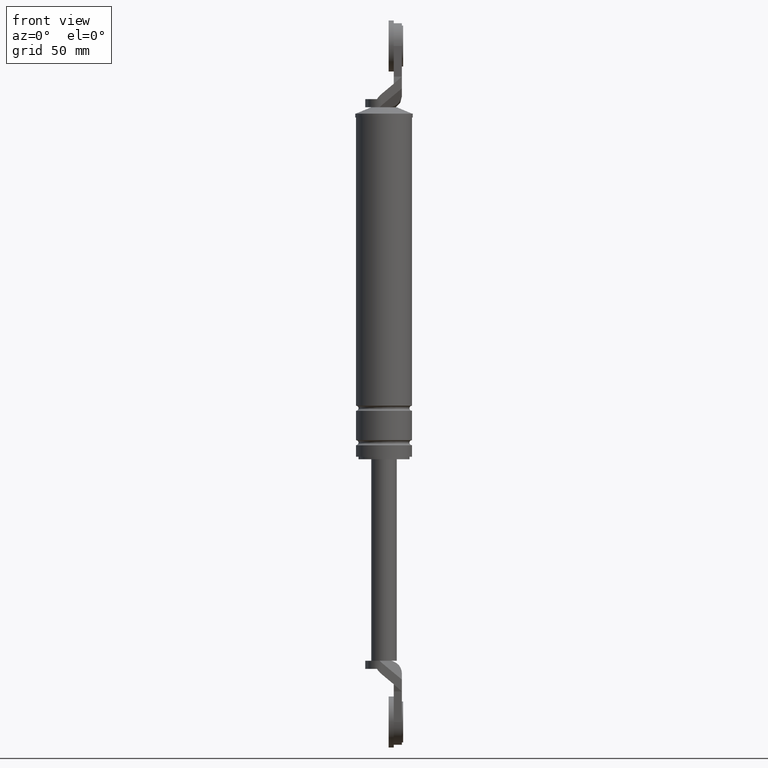
[diagram: clean part render]
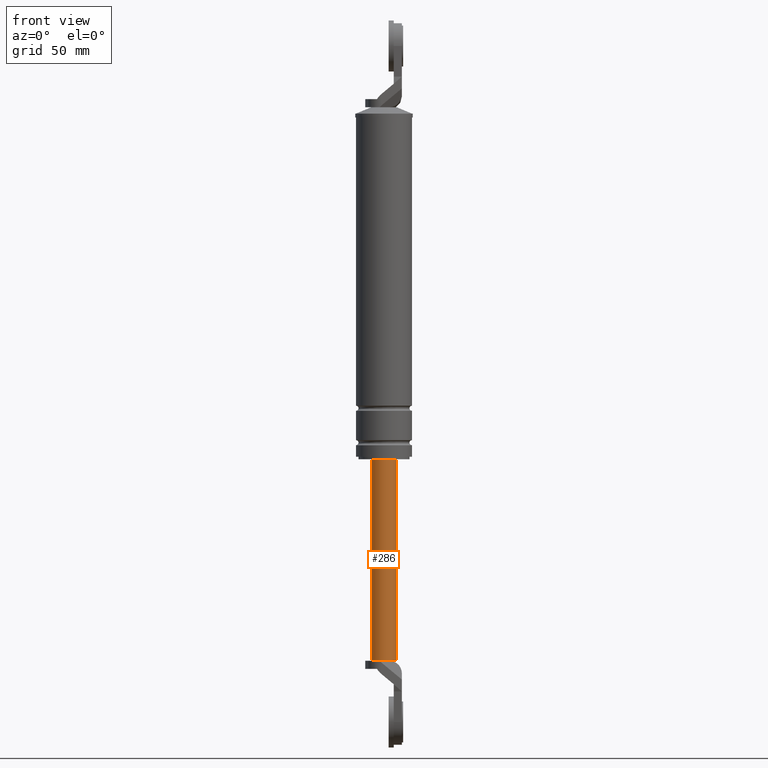
[diagram: same view with one face highlighted and labeled with its STEP entity id]
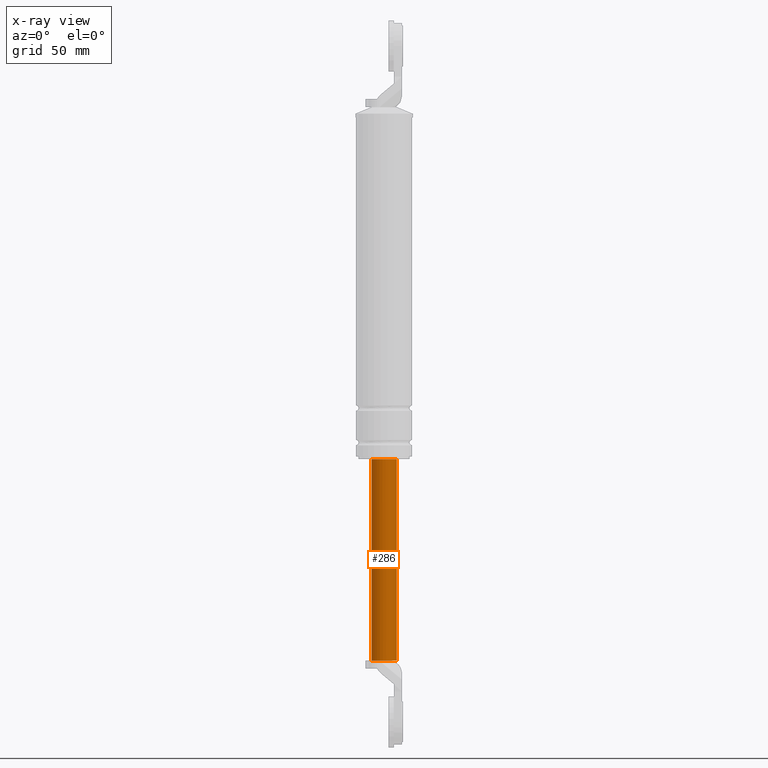
[diagram: x-ray of the same camera — body ghosted, the highlighted face saturated]
A machine part, front view. The second image highlights one B-rep face of the part: STEP entity #286.
The next image is the same camera in x-ray: the body ghosted, the highlighted face saturated — about 0% of this face is hidden behind the body in this view.
In plain terms, the highlighted cylindrical surface (edge-blend (fillet) strip) has radius 5 mm, axis along (0, 0, 1).
Its self-contained STEP definition (entity closure, byte-faithful):
#286=ADVANCED_FACE('',(#1119),#1118,.T.);
#1118=CYLINDRICAL_SURFACE('',#1778,5.00000000000E+000);
#1119=FACE_OUTER_BOUND('',#1779,.T.);
#1775=CARTESIAN_POINT('',(0.00000000000E+000,3.58204186421E-014,0.00000000000E+000));
#1776=DIRECTION('',(-0.00000000000E+000,-0.00000000000E+000,1.00000000000E+000));
#1777=DIRECTION('',(1.00000000000E+000,0.00000000000E+000,0.00000000000E+000));
#1778=AXIS2_PLACEMENT_3D('',#1775,#1776,#1777);
#1779=EDGE_LOOP('',(#2175,#2176,#2177,#2178,#2179));
#2175=ORIENTED_EDGE('',*,*,#2365,.F.);
#2176=ORIENTED_EDGE('',*,*,#2363,.F.);
#2177=ORIENTED_EDGE('',*,*,#2378,.T.);
#2178=ORIENTED_EDGE('',*,*,#2373,.T.);
#2179=ORIENTED_EDGE('',*,*,#2379,.F.);
#2363=EDGE_CURVE('',#3594,#3581,#3601,.T.);
#2365=EDGE_CURVE('',#3581,#3613,#3614,.T.);
#2373=EDGE_CURVE('',#3664,#3665,#3666,.T.);
#2378=EDGE_CURVE('',#3594,#3664,#3696,.T.);
#2379=EDGE_CURVE('',#3613,#3665,#3702,.T.);
#3581=VERTEX_POINT('',#4440);
#3594=VERTEX_POINT('',#4448);
#3601=CIRCLE('',#4456,5.00000000000E+000);
#3613=VERTEX_POINT('',#4460);
#3614=CIRCLE('',#4464,5.00000000000E+000);
#3664=VERTEX_POINT('',#4492);
#3665=VERTEX_POINT('',#4493);
#3666=CIRCLE('',#4497,5.00000000000E+000);
#3696=(BOUNDED_CURVE() B_SPLINE_CURVE(1,(#4510,#4511),.UNSPECIFIED.,.F.,.F.) B_SPLINE_CURVE_WITH_KNOTS((2,2),(8.33333332085E-002,9.16666666563E-001),.UNSPECIFIED.) CURVE() GEOMETRIC_REPRESENTATION_ITEM() RATIONAL_B_SPLINE_CURVE((1.00000000000E+000,1.00000000000E+000)) REPRESENTATION_ITEM('') );
#3702=(BOUNDED_CURVE() B_SPLINE_CURVE(1,(#4512,#4513),.UNSPECIFIED.,.F.,.F.) B_SPLINE_CURVE_WITH_KNOTS((2,2),(8.33333333333E-002,9.16666666667E-001),.UNSPECIFIED.) CURVE() GEOMETRIC_REPRESENTATION_ITEM() RATIONAL_B_SPLINE_CURVE((7.50000000000E-001,7.50000000000E-001)) REPRESENTATION_ITEM('') );
#4440=CARTESIAN_POINT('',(2.00000000000E+000,-4.58257569496E+000,-1.28000015000E+002));
#4448=CARTESIAN_POINT('',(5.00000000000E+000,1.01515834226E-011,-1.28000015000E+002));
#4453=CARTESIAN_POINT('',(0.00000000000E+000,3.58204186421E-014,-1.28000015000E+002));
#4454=DIRECTION('',(0.00000000000E+000,0.00000000000E+000,-1.00000000000E+000));
#4455=DIRECTION('',(4.00000000000E-001,9.16515138991E-001,0.00000000000E+000));
#4456=AXIS2_PLACEMENT_3D('',#4453,#4454,#4455);
#4460=CARTESIAN_POINT('',(-5.00000000000E+000,8.97827335911E-007,-1.28000015000E+002));
#4461=CARTESIAN_POINT('',(0.00000000000E+000,3.58204186421E-014,-1.28000015000E+002));
#4462=DIRECTION('',(0.00000000000E+000,0.00000000000E+000,-1.00000000000E+000));
#4463=DIRECTION('',(1.00000000000E+000,-0.00000000000E+000,-0.00000000000E+000));
#4464=AXIS2_PLACEMENT_3D('',#4461,#4462,#4463);
#4492=CARTESIAN_POINT('',(5.00000000000E+000,3.58231962612E-014,-4.90000150000E+001));
#4493=CARTESIAN_POINT('',(-5.00000000000E+000,3.58204186421E-014,-4.90000150000E+001));
#4494=CARTESIAN_POINT('',(0.00000000000E+000,3.58204186421E-014,-4.90000150000E+001));
#4495=DIRECTION('',(-0.00000000000E+000,0.00000000000E+000,-1.00000000000E+000));
#4496=DIRECTION('',(-1.00000000000E+000,-1.22460635382E-016,0.00000000000E+000));
#4497=AXIS2_PLACEMENT_3D('',#4494,#4495,#4496);
#4510=CARTESIAN_POINT('',(5.00000000000E+000,3.58204186421E-014,-1.28000015012E+002));
#4511=CARTESIAN_POINT('',(5.00000000000E+000,3.58204186421E-014,-4.90000150098E+001));
#4512=CARTESIAN_POINT('',(-5.00000000000E+000,3.55271367880E-014,-1.28000015000E+002));
#4513=CARTESIAN_POINT('',(-5.00000000000E+000,3.55271367880E-014,-4.90000150000E+001));